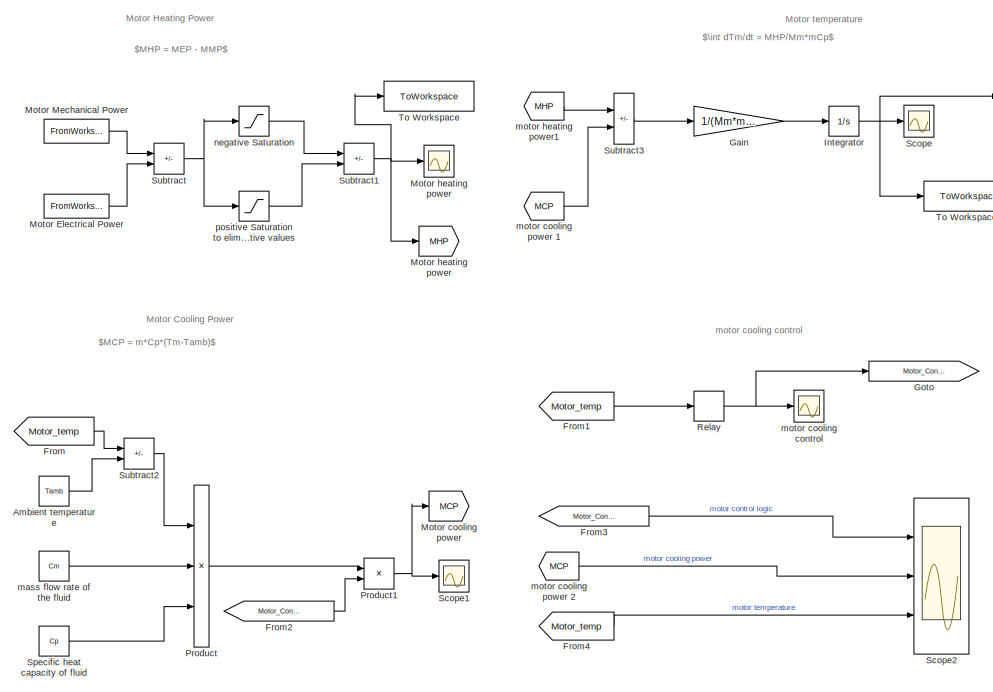
[diagram: root canvas - part 1/2, left side, full height]
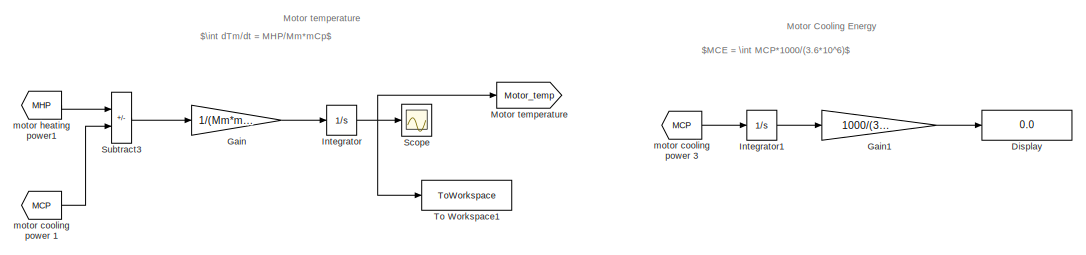
[diagram: root canvas - part 2/2, top center region]
MODEL slx_bc395f880aed
KIND model
CONFIG AbsTol = auto
CONFIG EnableMultiTasking = off
CONFIG FixedStep = 1
CONFIG MaxStep = auto
CONFIG MinStep = auto
CONFIG RelTol = 1e-3
CONFIG SampleTimeConstraint = Unconstrained
CONFIG SolverName = FixedStepAuto
CONFIG StartTime = 0.0
CONFIG StopTime = Tsim
BLOCK [Constant] Ambient temperature
  Value = Tamb
BLOCK [Display] Display
  Decimation = 1
  Ports = [1]
BLOCK [From] From
  GotoTag = Motor_temp
  TagVisibility = global
BLOCK [From] From1
  GotoTag = Motor_temp
  TagVisibility = global
BLOCK [From] From2
  GotoTag = Motor_Control_Logic
  TagVisibility = global
BLOCK [From] From3
  GotoTag = Motor_Control_Logic
  TagVisibility = global
BLOCK [From] From4
  GotoTag = Motor_temp
  TagVisibility = global
BLOCK [Gain] Gain
  Gain = 1/(Mm*mCp)
BLOCK [Gain] Gain1
  Gain = 1000/(3.6*10^6)
BLOCK [Goto] Goto
  GotoTag = Motor_Control_Logic
  TagVisibility = global
BLOCK [Integrator] Integrator
  InitialCondition = Tmotor_i
  Ports = [1, 1]
BLOCK [Integrator] Integrator1
  Ports = [1, 1]
BLOCK [FromWorkspace] Motor Electrical Power
  VariableName = MEP
BLOCK [FromWorkspace] Motor Mechanical Power
  VariableName = MMP
BLOCK [Goto] Motor cooling power
  GotoTag = MCP
  TagVisibility = global
BLOCK [Goto] Motor heating power
  GotoTag = MHP
  TagVisibility = global
BLOCK [Goto] Motor temperature
  GotoTag = Motor_temp
  TagVisibility = global
BLOCK [Product] Product
  Inputs = 3
  Ports = [3, 1]
BLOCK [Product] Product1
  Ports = [2, 1]
BLOCK [Relay] Relay
  OffSwitchValue = 20
  OnSwitchValue = 30
BLOCK [Scope] Scope
  Floating = off
  NumInputPorts = 1
  Ports = [1]
  ScopeSpecificationString = Simulink.scopes.TimeScopeBlockCfg('CurrentConfiguration', extmgr.ConfigurationSet(extmgr.Configuration('Core','General UI',true),extmgr.Configuration('Core','Source UI',true),extmgr.Configuration('Sources','WiredSimulink',true,'DataLoggingVariableName','ScopeData1'),extmgr.Configuration('Visuals','Time Domain',true,'SerializedDisplays',{struct('MinYLimReal','18.64559','MaxYLimReal','31.30194','YLa...<+1407ch>
BLOCK [Scope] Scope1
  Floating = off
  NumInputPorts = 1
  Ports = [1]
  ScopeSpecificationString = Simulink.scopes.TimeScopeBlockCfg('CurrentConfiguration', extmgr.ConfigurationSet(extmgr.Configuration('Core','General UI',true),extmgr.Configuration('Core','Source UI',true),extmgr.Configuration('Sources','WiredSimulink',true,'DataLoggingVariableName','ScopeData2'),extmgr.Configuration('Visuals','Time Domain',true,'SerializedDisplays',{struct('MinYLimReal','-12785.94668','MaxYLimReal','115073.520...<+1429ch>
BLOCK [Scope] Scope2
  Floating = off
  NumInputPorts = 3
  Ports = [3]
  ScopeSpecificationString = Simulink.scopes.TimeScopeBlockCfg('CurrentConfiguration', extmgr.ConfigurationSet(extmgr.Configuration('Core','General UI',true),extmgr.Configuration('Core','Source UI',true),extmgr.Configuration('Sources','WiredSimulink',true,'DataLoggingVariableName','ScopeData2'),extmgr.Configuration('Visuals','Time Domain',true,'SerializedDisplays',{struct('MinYLimReal','-0.125','MaxYLimReal','1.125','YLabelRe...<+2797ch>
BLOCK [Constant] Specific heat capacity of fluid
  Value = Cp
BLOCK [Sum] Subtract
  IconShape = rectangular
  Inputs = -+
  Ports = [2, 1]
BLOCK [Sum] Subtract1
  IconShape = rectangular
  Inputs = +-
  Ports = [2, 1]
BLOCK [Sum] Subtract2
  IconShape = rectangular
  Inputs = +-
  Ports = [2, 1]
BLOCK [Sum] Subtract3
  IconShape = rectangular
  Inputs = +-
  Ports = [2, 1]
BLOCK [ToWorkspace] To Workspace
  FixptAsFi = on
  MaxDataPoints = inf
  Ports = [1]
  SampleTime = -1
  SaveFormat = Timeseries
  VariableName = Motor_HP
BLOCK [ToWorkspace] To Workspace1
  FixptAsFi = on
  MaxDataPoints = inf
  Ports = [1]
  SampleTime = -1
  SaveFormat = Timeseries
  VariableName = Motor_Temp
BLOCK [Constant] mass flow rate of the fluid
  Value = Cm
BLOCK [Scope] motor cooling control
  Floating = off
  NumInputPorts = 1
  Ports = [1]
  ScopeSpecificationString = Simulink.scopes.TimeScopeBlockCfg('CurrentConfiguration', extmgr.ConfigurationSet(extmgr.Configuration('Core','General UI',true),extmgr.Configuration('Core','Source UI',true),extmgr.Configuration('Sources','WiredSimulink',true,'DataLoggingVariableName','ScopeData1'),extmgr.Configuration('Visuals','Time Domain',true,'SerializedDisplays',{struct('MinYLimReal','-0.125','MaxYLimReal','1.125','YLabelRe...<+1383ch>
BLOCK [From] motor cooling power 1
  GotoTag = MCP
  TagVisibility = global
BLOCK [From] motor cooling power 2
  GotoTag = MCP
  TagVisibility = global
BLOCK [From] motor cooling power 3
  GotoTag = MCP
  TagVisibility = global
BLOCK [From] motor heating power1
  GotoTag = MHP
  TagVisibility = global
BLOCK [Saturate] negative Saturation
  LowerLimit = 0
  UpperLimit = inf
BLOCK [Saturate] positive Saturation to eliminate positive values
  LowerLimit = -inf
  UpperLimit = 0
ANNOTATION (root): Motor Heating Power
ANNOTATION (root): $MCP = m*Cp*(Tm-Tamb)$
ANNOTATION (root): $MHP = MEP - MMP$
ANNOTATION (root): $\int dTm/dt = MHP/Mm*mCp$
ANNOTATION (root): $MCE = \int MCP*1000/(3.6*10^6)$
ANNOTATION (root): Motor Cooling Energy
ANNOTATION (root): Motor Cooling Power
ANNOTATION (root): Motor temperature
ANNOTATION (root): motor cooling control
LINE Ambient temperature:1 -> Subtract2:2
LINE From1:1 -> Relay:1
LINE From2:1 -> Product1:2
LINE From3:1 -> Scope2:1
LINE From4:1 -> Scope2:3
LINE From:1 -> Subtract2:1
LINE Gain1:1 -> Display:1
LINE Gain:1 -> Integrator:1
LINE Integrator1:1 -> Gain1:1
NET Integrator:1 -> Motor temperature:1, Scope:1, To Workspace1:1
LINE Motor Electrical Power:1 -> Subtract:2
LINE Motor Mechanical Power:1 -> Subtract:1
NET Product1:1 -> Motor cooling power:1, Scope1:1
LINE Product:1 -> Product1:1
NET Relay:1 -> Goto:1, motor cooling control:1
LINE Specific heat capacity of fluid:1 -> Product:3
NET Subtract1:1 -> Motor heating power:1, To Workspace:1
LINE Subtract2:1 -> Product:1
LINE Subtract3:1 -> Gain:1
NET Subtract:1 -> negative Saturation:1, positive Saturation to eliminate positive values:1
LINE mass flow rate of the fluid:1 -> Product:2
LINE motor cooling power 1:1 -> Subtract3:2
LINE motor cooling power 2:1 -> Scope2:2
LINE motor cooling power 3:1 -> Integrator1:1
LINE motor heating power1:1 -> Subtract3:1
LINE negative Saturation:1 -> Subtract1:1
LINE positive Saturation to eliminate positive values:1 -> Subtract1:2
note: NET lines group one-source signal fan-out (src -> all destinations, sorted); 1:1 wires keep LINE
